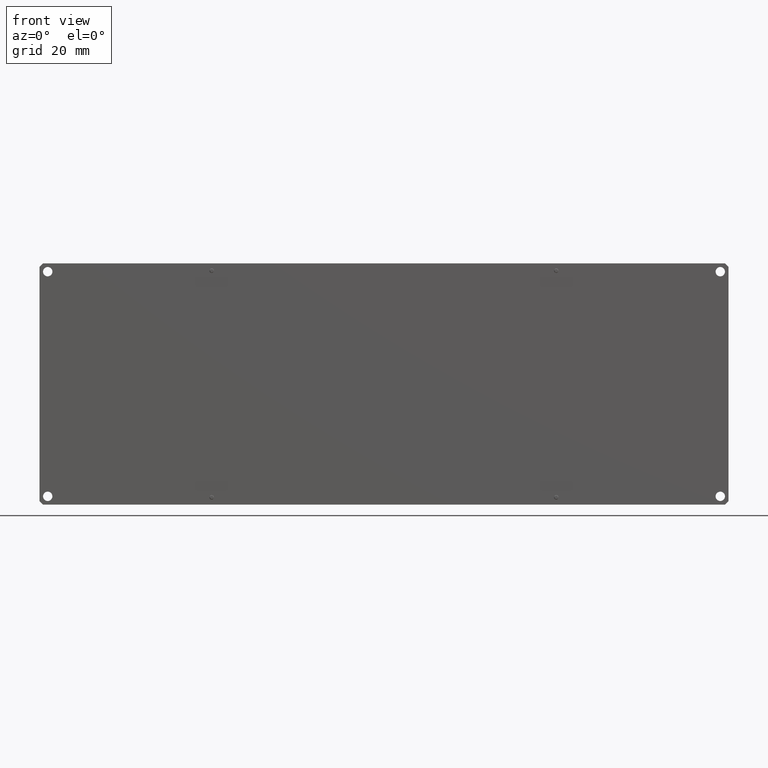
[diagram: clean part render]
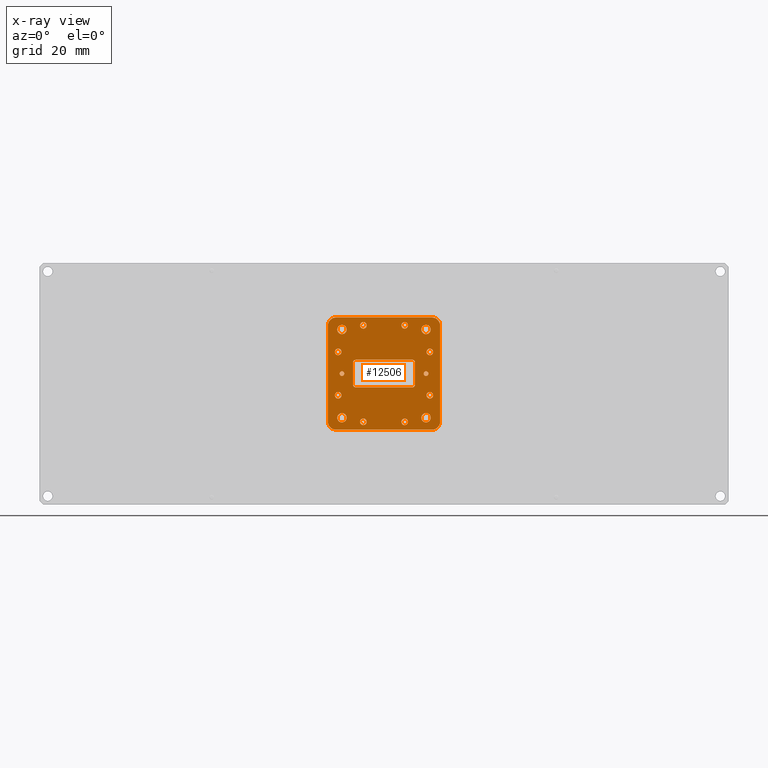
[diagram: x-ray — body ghosted, one internal face saturated and labeled with its STEP entity id]
A machine part, front view, then the same camera in x-ray: the body is ghosted and one INTERNAL B-rep face — a face not visible from any outside direction — is saturated and labeled: STEP entity #12506.
In plain terms, the highlighted planar face has unit normal (0, 1, -0).
Its self-contained STEP definition (entity closure, byte-faithful):
#25 = LINE ( 'NONE', #6409, #1653 ) ;
#55 = CARTESIAN_POINT ( 'NONE',  ( -38.27910945080824945, 18.86423224274894750, 4.946734810824807482 ) ) ;
#59 = CARTESIAN_POINT ( 'NONE',  ( -12.37110945080824642, 18.86423224274894750, 0.03183481082480628388 ) ) ;
#66 = AXIS2_PLACEMENT_3D ( 'NONE', #2451, #11174, #5684 ) ;
#89 = CARTESIAN_POINT ( 'NONE',  ( -34.21510945080824229, 18.86423224274894750, 8.159834810824811768 ) ) ;
#95 = VERTEX_POINT ( 'NONE', #8981 ) ;
#112 = VERTEX_POINT ( 'NONE', #13267 ) ;
#134 = DIRECTION ( 'NONE',  ( 0.000000000000000000, 0.000000000000000000, 1.000000000000000000 ) ) ;
#142 = AXIS2_PLACEMENT_3D ( 'NONE', #2832, #10411, #12924 ) ;
#151 = VERTEX_POINT ( 'NONE', #12993 ) ;
#161 = CARTESIAN_POINT ( 'NONE',  ( -39.67610945080826212, 18.86423224274894750, 13.31603481082479590 ) ) ;
#178 = EDGE_CURVE ( 'NONE', #6704, #1979, #9813, .T. ) ;
#199 = CARTESIAN_POINT ( 'NONE',  ( -30.40510945080824712, 18.86423224274894750, 20.65663481082480857 ) ) ;
#235 = ORIENTED_EDGE ( 'NONE', *, *, #2379, .F. ) ;
#239 = DIRECTION ( 'NONE',  ( 0.000000000000000000, 1.000000000000000000, -0.000000000000000000 ) ) ;
#255 = CARTESIAN_POINT ( 'NONE',  ( -30.40510945080824712, 18.86423224274894750, 21.87583481082480574 ) ) ;
#270 = EDGE_CURVE ( 'NONE', #2891, #112, #8692, .T. ) ;
#278 = DIRECTION ( 'NONE',  ( 0.000000000000000000, 1.000000000000000000, -0.000000000000000000 ) ) ;
#291 = CIRCLE ( 'NONE', #10392, 1.219199999999996731 ) ;
#332 = EDGE_CURVE ( 'NONE', #13416, #2404, #5093, .T. ) ;
#384 = EDGE_CURVE ( 'NONE', #7284, #11251, #3298, .T. ) ;
#409 = CARTESIAN_POINT ( 'NONE',  ( -7.291109450808252568, 18.86423224274894750, 4.095834810824809047 ) ) ;
#413 = CARTESIAN_POINT ( 'NONE',  ( -7.291109450808250791, 18.86423224274894750, -10.43296518917519400 ) ) ;
#456 = CIRCLE ( 'NONE', #8982, 1.219199999999996731 ) ;
#459 = ORIENTED_EDGE ( 'NONE', *, *, #10966, .T. ) ;
#481 = EDGE_CURVE ( 'NONE', #7651, #11425, #4212, .T. ) ;
#487 = CARTESIAN_POINT ( 'NONE',  ( -39.67610945080826212, 18.86423224274894750, -3.905165189175186402 ) ) ;
#489 = EDGE_CURVE ( 'NONE', #6889, #12613, #1733, .T. ) ;
#490 = EDGE_LOOP ( 'NONE', ( #11924, #459 ) ) ;
#496 = VERTEX_POINT ( 'NONE', #55 ) ;
#583 = VERTEX_POINT ( 'NONE', #3434 ) ;
#597 = CARTESIAN_POINT ( 'NONE',  ( -5.894109450808239892, 18.86423224274894750, -2.685965189175195000 ) ) ;
#632 = CARTESIAN_POINT ( 'NONE',  ( -15.16510945080825223, 18.86423224274894750, -13.68416518917518943 ) ) ;
#698 = CARTESIAN_POINT ( 'NONE',  ( -5.894109450808239892, 18.86423224274894750, 10.87763481082480155 ) ) ;
#739 = VERTEX_POINT ( 'NONE', #3261 ) ;
#781 = EDGE_CURVE ( 'NONE', #2404, #1125, #2264, .T. ) ;
#794 = VERTEX_POINT ( 'NONE', #1079 ) ;
#802 = CIRCLE ( 'NONE', #8656, 1.015999999999999570 ) ;
#830 = ORIENTED_EDGE ( 'NONE', *, *, #10790, .F. ) ;
#949 = EDGE_CURVE ( 'NONE', #95, #5609, #5300, .T. ) ;
#979 = DIRECTION ( 'NONE',  ( -0.000000000000000000, -1.000000000000000000, -0.000000000000000000 ) ) ;
#1008 = AXIS2_PLACEMENT_3D ( 'NONE', #11203, #3966, #3892 ) ;
#1044 = CIRCLE ( 'NONE', #3956, 1.016000000000000014 ) ;
#1066 = ORIENTED_EDGE ( 'NONE', *, *, #12535, .T. ) ;
#1079 = CARTESIAN_POINT ( 'NONE',  ( -30.40510945080824712, 18.86423224274894750, 23.09503481082480292 ) ) ;
#1091 = DIRECTION ( 'NONE',  ( 0.000000000000000000, 1.000000000000000000, -0.000000000000000000 ) ) ;
#1122 = EDGE_LOOP ( 'NONE', ( #6341, #1750 ) ) ;
#1125 = VERTEX_POINT ( 'NONE', #2112 ) ;
#1181 = DIRECTION ( 'NONE',  ( 0.000000000000000000, 1.000000000000000000, -0.000000000000000000 ) ) ;
#1227 = CIRCLE ( 'NONE', #11550, 1.219199999999996731 ) ;
#1241 = CIRCLE ( 'NONE', #2141, 1.219199999999998507 ) ;
#1247 = VERTEX_POINT ( 'NONE', #10819 ) ;
#1276 = CIRCLE ( 'NONE', #6414, 3.048000000000000487 ) ;
#1324 = ORIENTED_EDGE ( 'NONE', *, *, #12075, .F. ) ;
#1334 = DIRECTION ( 'NONE',  ( 0.000000000000000000, 0.000000000000000000, 1.000000000000000000 ) ) ;
#1347 = DIRECTION ( 'NONE',  ( 0.000000000000000000, 0.000000000000000000, 1.000000000000000000 ) ) ;
#1378 = DIRECTION ( 'NONE',  ( 0.000000000000000000, 1.000000000000000000, -0.000000000000000000 ) ) ;
#1418 = ORIENTED_EDGE ( 'NONE', *, *, #2310, .F. ) ;
#1503 = CARTESIAN_POINT ( 'NONE',  ( -7.291109450808250791, 18.86423224274894750, 22.07903481082480823 ) ) ;
#1522 = EDGE_CURVE ( 'NONE', #5063, #12476, #1915, .T. ) ;
#1524 = EDGE_CURVE ( 'NONE', #4023, #151, #4387, .T. ) ;
#1525 = EDGE_CURVE ( 'NONE', #5609, #95, #8195, .T. ) ;
#1590 = CIRCLE ( 'NONE', #12580, 1.015999999999999570 ) ;
#1609 = DIRECTION ( 'NONE',  ( 0.000000000000000000, 0.000000000000000000, 1.000000000000000000 ) ) ;
#1653 = VECTOR ( 'NONE', #6138, 1000.000000000000000 ) ;
#1723 = AXIS2_PLACEMENT_3D ( 'NONE', #6862, #7847, #5810 ) ;
#1733 = CIRCLE ( 'NONE', #3990, 1.219199999999996731 ) ;
#1750 = ORIENTED_EDGE ( 'NONE', *, *, #5625, .T. ) ;
#1779 = CARTESIAN_POINT ( 'NONE',  ( -22.78510945080825323, 18.86423224274894750, -16.60516518917519591 ) ) ;
#1795 = CARTESIAN_POINT ( 'NONE',  ( -39.67610945080826212, 18.86423224274894750, 12.09683481082479872 ) ) ;
#1832 = DIRECTION ( 'NONE',  ( 0.000000000000000000, 0.000000000000000000, 1.000000000000000000 ) ) ;
#1862 = EDGE_CURVE ( 'NONE', #7774, #5031, #6117, .T. ) ;
#1870 = CARTESIAN_POINT ( 'NONE',  ( -38.27910945080824945, 18.86423224274894750, 22.07903481082480823 ) ) ;
#1876 = VERTEX_POINT ( 'NONE', #1870 ) ;
#1915 = CIRCLE ( 'NONE', #12449, 1.219199999999998507 ) ;
#1936 = AXIS2_PLACEMENT_3D ( 'NONE', #6677, #10971, #1347 ) ;
#1957 = DIRECTION ( 'NONE',  ( 0.000000000000000000, 0.000000000000000000, -1.000000000000000000 ) ) ;
#1979 = VERTEX_POINT ( 'NONE', #7410 ) ;
#2020 = CARTESIAN_POINT ( 'NONE',  ( -38.27910945080824945, 18.86423224274894750, -10.43296518917519400 ) ) ;
#2090 = DIRECTION ( 'NONE',  ( 0.000000000000000000, 0.000000000000000000, 1.000000000000000000 ) ) ;
#2103 = CIRCLE ( 'NONE', #3900, 1.219199999999996731 ) ;
#2112 = CARTESIAN_POINT ( 'NONE',  ( -40.43810945080826258, 18.86423224274894750, 24.79683481082480156 ) ) ;
#2141 = AXIS2_PLACEMENT_3D ( 'NONE', #6418, #1091, #4320 ) ;
#2144 = FACE_BOUND ( 'NONE', #10643, .T. ) ;
#2169 = DIRECTION ( 'NONE',  ( 0.000000000000000000, 1.000000000000000000, -0.000000000000000000 ) ) ;
#2199 = DIRECTION ( 'NONE',  ( -1.000000000000000000, 0.000000000000000000, 0.000000000000000000 ) ) ;
#2210 = FACE_BOUND ( 'NONE', #1122, .T. ) ;
#2264 = LINE ( 'NONE', #9792, #13158 ) ;
#2279 = FACE_BOUND ( 'NONE', #10183, .T. ) ;
#2283 = VECTOR ( 'NONE', #9784, 1000.000000000000000 ) ;
#2304 = ORIENTED_EDGE ( 'NONE', *, *, #1524, .T. ) ;
#2310 = EDGE_CURVE ( 'NONE', #9761, #583, #7180, .T. ) ;
#2379 = EDGE_CURVE ( 'NONE', #10781, #151, #25, .T. ) ;
#2398 = EDGE_LOOP ( 'NONE', ( #3223, #6780 ) ) ;
#2404 = VERTEX_POINT ( 'NONE', #4039 ) ;
#2419 = FACE_BOUND ( 'NONE', #490, .T. ) ;
#2451 = CARTESIAN_POINT ( 'NONE',  ( -38.27910945080824945, 18.86423224274894750, 4.095834810824808159 ) ) ;
#2573 = ORIENTED_EDGE ( 'NONE', *, *, #481, .T. ) ;
#2638 = DIRECTION ( 'NONE',  ( -1.000000000000000000, 0.000000000000000000, 1.675980364211204327E-16 ) ) ;
#2663 = VERTEX_POINT ( 'NONE', #698 ) ;
#2707 = CARTESIAN_POINT ( 'NONE',  ( -7.291109450808250791, 18.86423224274894750, -12.16016518917519207 ) ) ;
#2813 = CIRCLE ( 'NONE', #9310, 1.219199999999996731 ) ;
#2824 = VERTEX_POINT ( 'NONE', #10600 ) ;
#2832 = CARTESIAN_POINT ( 'NONE',  ( -5.132109450808237661, 18.86423224274894750, -13.55716518917519764 ) ) ;
#2891 = VERTEX_POINT ( 'NONE', #9825 ) ;
#2937 = CARTESIAN_POINT ( 'NONE',  ( -5.132109450808237661, 18.86423224274894750, 21.74883481082479619 ) ) ;
#2944 = CARTESIAN_POINT ( 'NONE',  ( -33.19910945080824405, 18.86423224274894750, -0.9841651891751898029 ) ) ;
#2952 = VECTOR ( 'NONE', #9874, 1000.000000000000000 ) ;
#3014 = CARTESIAN_POINT ( 'NONE',  ( -11.35510945080824641, 18.86423224274894750, 9.175834810824808230 ) ) ;
#3146 = CARTESIAN_POINT ( 'NONE',  ( -15.16510945080825223, 18.86423224274894750, 21.87583481082480574 ) ) ;
#3223 = ORIENTED_EDGE ( 'NONE', *, *, #1862, .T. ) ;
#3261 = CARTESIAN_POINT ( 'NONE',  ( -38.27910945080824945, 18.86423224274894750, 3.244934810824807947 ) ) ;
#3278 = FACE_BOUND ( 'NONE', #8121, .T. ) ;
#3298 = LINE ( 'NONE', #3014, #9367 ) ;
#3303 = DIRECTION ( 'NONE',  ( 0.000000000000000000, 1.000000000000000000, -0.000000000000000000 ) ) ;
#3309 = CIRCLE ( 'NONE', #12721, 0.8508999999999982133 ) ;
#3347 = CARTESIAN_POINT ( 'NONE',  ( -38.27910945080824945, 18.86423224274894750, 20.35183481082480839 ) ) ;
#3355 = ORIENTED_EDGE ( 'NONE', *, *, #8143, .T. ) ;
#3373 = ORIENTED_EDGE ( 'NONE', *, *, #4605, .T. ) ;
#3411 = AXIS2_PLACEMENT_3D ( 'NONE', #3347, #11265, #5723 ) ;
#3412 = CARTESIAN_POINT ( 'NONE',  ( -22.78510945080824968, 18.86423224274894750, 4.095834810824808159 ) ) ;
#3434 = CARTESIAN_POINT ( 'NONE',  ( -40.43810945080826258, 18.86423224274894750, -16.60516518917518880 ) ) ;
#3436 = CARTESIAN_POINT ( 'NONE',  ( -5.132109450808237661, 18.86423224274894750, -16.60516518917519591 ) ) ;
#3527 = CARTESIAN_POINT ( 'NONE',  ( -11.35510945080824641, 18.86423224274894750, 8.159834810824808216 ) ) ;
#3576 = AXIS2_PLACEMENT_3D ( 'NONE', #10813, #12716, #4356 ) ;
#3654 = DIRECTION ( 'NONE',  ( 0.000000000000000000, 0.000000000000000000, -1.000000000000000000 ) ) ;
#3674 = CARTESIAN_POINT ( 'NONE',  ( -5.894109450808239892, 18.86423224274894750, 13.31603481082479590 ) ) ;
#3704 = AXIS2_PLACEMENT_3D ( 'NONE', #11916, #6564, #13179 ) ;
#3739 = ORIENTED_EDGE ( 'NONE', *, *, #270, .T. ) ;
#3892 = DIRECTION ( 'NONE',  ( 0.000000000000000000, 0.000000000000000000, -1.000000000000000000 ) ) ;
#3900 = AXIS2_PLACEMENT_3D ( 'NONE', #4209, #6501, #10797 ) ;
#3956 = AXIS2_PLACEMENT_3D ( 'NONE', #9570, #11528, #1832 ) ;
#3966 = DIRECTION ( 'NONE',  ( -0.000000000000000000, -1.000000000000000000, -0.000000000000000000 ) ) ;
#3971 = EDGE_CURVE ( 'NONE', #794, #10894, #9638, .T. ) ;
#3975 = AXIS2_PLACEMENT_3D ( 'NONE', #8008, #10250, #9262 ) ;
#3980 = DIRECTION ( 'NONE',  ( 0.000000000000000000, 0.000000000000000000, 1.000000000000000000 ) ) ;
#3990 = AXIS2_PLACEMENT_3D ( 'NONE', #10731, #6366, #11586 ) ;
#4023 = VERTEX_POINT ( 'NONE', #13056 ) ;
#4039 = CARTESIAN_POINT ( 'NONE',  ( -5.132109450808237661, 18.86423224274894750, 24.79683481082480156 ) ) ;
#4066 = DIRECTION ( 'NONE',  ( -1.000000000000000000, 0.000000000000000000, 1.138269997360109674E-16 ) ) ;
#4102 = EDGE_CURVE ( 'NONE', #8986, #7979, #12209, .T. ) ;
#4134 = CARTESIAN_POINT ( 'NONE',  ( -7.291109450808252568, 18.86423224274894750, 3.244934810824810612 ) ) ;
#4141 = CARTESIAN_POINT ( 'NONE',  ( -38.27910945080824945, 18.86423224274894750, -12.16016518917519207 ) ) ;
#4166 = ORIENTED_EDGE ( 'NONE', *, *, #7715, .F. ) ;
#4209 = CARTESIAN_POINT ( 'NONE',  ( -5.894109450808239892, 18.86423224274894750, 12.09683481082479872 ) ) ;
#4212 = CIRCLE ( 'NONE', #13854, 1.219199999999996731 ) ;
#4320 = DIRECTION ( 'NONE',  ( 0.000000000000000000, 0.000000000000000000, 1.000000000000000000 ) ) ;
#4356 = DIRECTION ( 'NONE',  ( 0.000000000000000000, 0.000000000000000000, 1.000000000000000000 ) ) ;
#4387 = CIRCLE ( 'NONE', #5512, 1.016000000000000014 ) ;
#4396 = VERTEX_POINT ( 'NONE', #4134 ) ;
#4542 = ORIENTED_EDGE ( 'NONE', *, *, #1525, .T. ) ;
#4559 = ORIENTED_EDGE ( 'NONE', *, *, #3971, .T. ) ;
#4571 = VECTOR ( 'NONE', #1957, 1000.000000000000000 ) ;
#4575 = LINE ( 'NONE', #8660, #2283 ) ;
#4605 = EDGE_CURVE ( 'NONE', #9621, #11009, #11891, .T. ) ;
#4703 = EDGE_LOOP ( 'NONE', ( #1066, #9066 ) ) ;
#4711 = CARTESIAN_POINT ( 'NONE',  ( -43.48610945080825729, 18.86423224274894750, 4.095834810824808159 ) ) ;
#4720 = CIRCLE ( 'NONE', #9218, 1.219199999999996731 ) ;
#4767 = DIRECTION ( 'NONE',  ( 0.000000000000000000, 0.000000000000000000, 1.000000000000000000 ) ) ;
#4789 = EDGE_CURVE ( 'NONE', #12613, #6889, #456, .T. ) ;
#4806 = ORIENTED_EDGE ( 'NONE', *, *, #6324, .F. ) ;
#4883 = DIRECTION ( 'NONE',  ( 0.000000000000000000, 1.000000000000000000, -0.000000000000000000 ) ) ;
#5031 = VERTEX_POINT ( 'NONE', #13583 ) ;
#5063 = VERTEX_POINT ( 'NONE', #11339 ) ;
#5081 = CARTESIAN_POINT ( 'NONE',  ( -38.27910945080824945, 18.86423224274894750, 18.62463481082481209 ) ) ;
#5093 = CIRCLE ( 'NONE', #13400, 3.047999999999998710 ) ;
#5137 = DIRECTION ( 'NONE',  ( -0.000000000000000000, -1.000000000000000000, 0.000000000000000000 ) ) ;
#5300 = CIRCLE ( 'NONE', #1936, 1.727199999999998070 ) ;
#5348 = DIRECTION ( 'NONE',  ( 0.000000000000000000, 0.000000000000000000, 1.000000000000000000 ) ) ;
#5349 = ORIENTED_EDGE ( 'NONE', *, *, #7140, .T. ) ;
#5358 = CARTESIAN_POINT ( 'NONE',  ( -39.67610945080826212, 18.86423224274894750, -2.685965189175189671 ) ) ;
#5384 = EDGE_CURVE ( 'NONE', #6637, #10565, #10060, .T. ) ;
#5417 = VERTEX_POINT ( 'NONE', #3674 ) ;
#5512 = AXIS2_PLACEMENT_3D ( 'NONE', #59, #2169, #12707 ) ;
#5517 = FACE_BOUND ( 'NONE', #7320, .T. ) ;
#5560 = CARTESIAN_POINT ( 'NONE',  ( -38.27910945080824945, 18.86423224274894750, 20.35183481082480839 ) ) ;
#5609 = VERTEX_POINT ( 'NONE', #2020 ) ;
#5625 = EDGE_CURVE ( 'NONE', #2663, #5417, #2103, .T. ) ;
#5684 = DIRECTION ( 'NONE',  ( 0.000000000000000000, 0.000000000000000000, -1.000000000000000000 ) ) ;
#5723 = DIRECTION ( 'NONE',  ( 0.000000000000000000, 0.000000000000000000, 1.000000000000000000 ) ) ;
#5735 = ORIENTED_EDGE ( 'NONE', *, *, #13462, .T. ) ;
#5740 = EDGE_CURVE ( 'NONE', #4396, #11698, #13330, .T. ) ;
#5810 = DIRECTION ( 'NONE',  ( 0.000000000000000000, 0.000000000000000000, 1.000000000000000000 ) ) ;
#5891 = DIRECTION ( 'NONE',  ( -0.000000000000000000, -1.000000000000000000, 0.000000000000000000 ) ) ;
#5980 = CIRCLE ( 'NONE', #13603, 1.727199999999998070 ) ;
#6036 = CARTESIAN_POINT ( 'NONE',  ( -34.21510945080824229, 18.86423224274894750, 0.03183481082481062069 ) ) ;
#6094 = CIRCLE ( 'NONE', #3411, 1.727199999999998070 ) ;
#6115 = CIRCLE ( 'NONE', #66, 0.8508999999999998787 ) ;
#6117 = CIRCLE ( 'NONE', #9036, 1.219199999999996731 ) ;
#6138 = DIRECTION ( 'NONE',  ( 1.000000000000000000, 0.000000000000000000, -1.517693329813479566E-16 ) ) ;
#6300 = DIRECTION ( 'NONE',  ( 0.000000000000000000, 0.000000000000000000, 1.000000000000000000 ) ) ;
#6311 = ORIENTED_EDGE ( 'NONE', *, *, #949, .T. ) ;
#6318 = DIRECTION ( 'NONE',  ( 0.000000000000000000, 1.000000000000000000, -0.000000000000000000 ) ) ;
#6324 = EDGE_CURVE ( 'NONE', #739, #496, #10878, .T. ) ;
#6341 = ORIENTED_EDGE ( 'NONE', *, *, #6860, .T. ) ;
#6366 = DIRECTION ( 'NONE',  ( 0.000000000000000000, 1.000000000000000000, -0.000000000000000000 ) ) ;
#6372 = DIRECTION ( 'NONE',  ( 0.000000000000000000, 0.000000000000000000, 1.000000000000000000 ) ) ;
#6409 = CARTESIAN_POINT ( 'NONE',  ( -11.35510945080824641, 18.86423224274894750, -0.9841651891751932446 ) ) ;
#6414 = AXIS2_PLACEMENT_3D ( 'NONE', #7380, #5137, #9427 ) ;
#6418 = CARTESIAN_POINT ( 'NONE',  ( -30.40510945080824712, 18.86423224274894750, -13.68416518917518943 ) ) ;
#6479 = FACE_BOUND ( 'NONE', #13628, .T. ) ;
#6501 = DIRECTION ( 'NONE',  ( 0.000000000000000000, 1.000000000000000000, -0.000000000000000000 ) ) ;
#6518 = ORIENTED_EDGE ( 'NONE', *, *, #489, .T. ) ;
#6564 = DIRECTION ( 'NONE',  ( 0.000000000000000000, 1.000000000000000000, -0.000000000000000000 ) ) ;
#6621 = FACE_BOUND ( 'NONE', #13738, .T. ) ;
#6637 = VERTEX_POINT ( 'NONE', #12094 ) ;
#6677 = CARTESIAN_POINT ( 'NONE',  ( -38.27910945080824945, 18.86423224274894750, -12.16016518917519207 ) ) ;
#6704 = VERTEX_POINT ( 'NONE', #1503 ) ;
#6780 = ORIENTED_EDGE ( 'NONE', *, *, #8127, .T. ) ;
#6857 = DIRECTION ( 'NONE',  ( -0.000000000000000000, -1.000000000000000000, -0.000000000000000000 ) ) ;
#6860 = EDGE_CURVE ( 'NONE', #5417, #2663, #6963, .T. ) ;
#6862 = CARTESIAN_POINT ( 'NONE',  ( -7.291109450808250791, 18.86423224274894750, -12.16016518917519207 ) ) ;
#6889 = VERTEX_POINT ( 'NONE', #7381 ) ;
#6913 = EDGE_CURVE ( 'NONE', #11425, #7651, #4720, .T. ) ;
#6925 = VERTEX_POINT ( 'NONE', #3527 ) ;
#6963 = CIRCLE ( 'NONE', #8769, 1.219199999999996731 ) ;
#7021 = VECTOR ( 'NONE', #2638, 1000.000000000000000 ) ;
#7061 = EDGE_LOOP ( 'NONE', ( #11409, #830 ) ) ;
#7140 = EDGE_CURVE ( 'NONE', #8986, #11251, #1590, .T. ) ;
#7148 = EDGE_LOOP ( 'NONE', ( #11144, #3739 ) ) ;
#7149 = ORIENTED_EDGE ( 'NONE', *, *, #11031, .T. ) ;
#7161 = ORIENTED_EDGE ( 'NONE', *, *, #10444, .T. ) ;
#7163 = AXIS2_PLACEMENT_3D ( 'NONE', #2707, #10155, #13516 ) ;
#7180 = LINE ( 'NONE', #1779, #7021 ) ;
#7284 = VERTEX_POINT ( 'NONE', #9557 ) ;
#7306 = ORIENTED_EDGE ( 'NONE', *, *, #9575, .T. ) ;
#7320 = EDGE_LOOP ( 'NONE', ( #2573, #13866 ) ) ;
#7380 = CARTESIAN_POINT ( 'NONE',  ( -40.43810945080826258, 18.86423224274894750, -13.55716518917519053 ) ) ;
#7381 = CARTESIAN_POINT ( 'NONE',  ( -5.894109450808239892, 18.86423224274894750, -5.124365189175188462 ) ) ;
#7404 = DIRECTION ( 'NONE',  ( 0.000000000000000000, 0.000000000000000000, 1.000000000000000000 ) ) ;
#7410 = CARTESIAN_POINT ( 'NONE',  ( -7.291109450808250791, 18.86423224274894750, 18.62463481082481209 ) ) ;
#7514 = AXIS2_PLACEMENT_3D ( 'NONE', #8010, #5891, #12285 ) ;
#7550 = FACE_OUTER_BOUND ( 'NONE', #8256, .T. ) ;
#7615 = FACE_BOUND ( 'NONE', #4703, .T. ) ;
#7648 = CARTESIAN_POINT ( 'NONE',  ( -7.291109450808252568, 18.86423224274894750, 4.946734810824806594 ) ) ;
#7651 = VERTEX_POINT ( 'NONE', #11463 ) ;
#7715 = EDGE_CURVE ( 'NONE', #4023, #6925, #4575, .T. ) ;
#7768 = CIRCLE ( 'NONE', #8450, 1.219199999999998507 ) ;
#7774 = VERTEX_POINT ( 'NONE', #161 ) ;
#7786 = CIRCLE ( 'NONE', #11816, 1.727199999999998070 ) ;
#7823 = DIRECTION ( 'NONE',  ( 0.000000000000000000, 0.000000000000000000, 1.000000000000000000 ) ) ;
#7847 = DIRECTION ( 'NONE',  ( 0.000000000000000000, 1.000000000000000000, -0.000000000000000000 ) ) ;
#7886 = ORIENTED_EDGE ( 'NONE', *, *, #13423, .F. ) ;
#7979 = VERTEX_POINT ( 'NONE', #6036 ) ;
#8008 = CARTESIAN_POINT ( 'NONE',  ( -30.40510945080824712, 18.86423224274894750, -13.68416518917518943 ) ) ;
#8010 = CARTESIAN_POINT ( 'NONE',  ( -40.43810945080826258, 18.86423224274894750, 21.74883481082479619 ) ) ;
#8121 = EDGE_LOOP ( 'NONE', ( #9882, #8889 ) ) ;
#8127 = EDGE_CURVE ( 'NONE', #5031, #7774, #13118, .T. ) ;
#8139 = DIRECTION ( 'NONE',  ( 0.000000000000000000, 1.000000000000000000, -0.000000000000000000 ) ) ;
#8143 = EDGE_CURVE ( 'NONE', #10894, #794, #1227, .T. ) ;
#8195 = CIRCLE ( 'NONE', #9779, 1.727199999999998070 ) ;
#8253 = ORIENTED_EDGE ( 'NONE', *, *, #11578, .T. ) ;
#8256 = EDGE_LOOP ( 'NONE', ( #1418, #8253, #1324, #13265, #8508, #7306, #13316, #13188 ) ) ;
#8288 = EDGE_CURVE ( 'NONE', #10081, #2824, #2813, .T. ) ;
#8290 = ORIENTED_EDGE ( 'NONE', *, *, #8288, .T. ) ;
#8380 = EDGE_CURVE ( 'NONE', #112, #2891, #1241, .T. ) ;
#8450 = AXIS2_PLACEMENT_3D ( 'NONE', #12351, #8923, #11178 ) ;
#8474 = CARTESIAN_POINT ( 'NONE',  ( -5.894109450808239892, 18.86423224274894750, -3.905165189175191287 ) ) ;
#8508 = ORIENTED_EDGE ( 'NONE', *, *, #781, .T. ) ;
#8642 = EDGE_CURVE ( 'NONE', #7284, #6925, #802, .T. ) ;
#8656 = AXIS2_PLACEMENT_3D ( 'NONE', #9021, #12250, #12380 ) ;
#8660 = CARTESIAN_POINT ( 'NONE',  ( -11.35510945080824641, 18.86423224274894750, 9.175834810824808230 ) ) ;
#8692 = CIRCLE ( 'NONE', #3975, 1.219199999999998507 ) ;
#8694 = DIRECTION ( 'NONE',  ( 0.000000000000000000, 0.000000000000000000, 1.000000000000000000 ) ) ;
#8717 = DIRECTION ( 'NONE',  ( 0.000000000000000000, 1.000000000000000000, -0.000000000000000000 ) ) ;
#8769 = AXIS2_PLACEMENT_3D ( 'NONE', #10685, #6318, #5348 ) ;
#8849 = DIRECTION ( 'NONE',  ( 0.000000000000000000, 0.000000000000000000, 1.000000000000000000 ) ) ;
#8851 = DIRECTION ( 'NONE',  ( 0.000000000000000000, 1.000000000000000000, -0.000000000000000000 ) ) ;
#8889 = ORIENTED_EDGE ( 'NONE', *, *, #1522, .T. ) ;
#8918 = DIRECTION ( 'NONE',  ( 0.000000000000000000, 0.000000000000000000, 1.000000000000000000 ) ) ;
#8923 = DIRECTION ( 'NONE',  ( 0.000000000000000000, 1.000000000000000000, -0.000000000000000000 ) ) ;
#8942 = ORIENTED_EDGE ( 'NONE', *, *, #8642, .T. ) ;
#8981 = CARTESIAN_POINT ( 'NONE',  ( -38.27910945080824945, 18.86423224274894750, -13.88736518917519014 ) ) ;
#8982 = AXIS2_PLACEMENT_3D ( 'NONE', #8474, #9662, #7404 ) ;
#8986 = VERTEX_POINT ( 'NONE', #89 ) ;
#9021 = CARTESIAN_POINT ( 'NONE',  ( -12.37110945080824642, 18.86423224274894750, 8.159834810824808216 ) ) ;
#9036 = AXIS2_PLACEMENT_3D ( 'NONE', #1795, #13396, #12333 ) ;
#9066 = ORIENTED_EDGE ( 'NONE', *, *, #10534, .T. ) ;
#9091 = CARTESIAN_POINT ( 'NONE',  ( -15.16510945080825223, 18.86423224274894750, 20.65663481082480857 ) ) ;
#9218 = AXIS2_PLACEMENT_3D ( 'NONE', #11734, #9636, #1334 ) ;
#9262 = DIRECTION ( 'NONE',  ( 0.000000000000000000, 0.000000000000000000, 1.000000000000000000 ) ) ;
#9310 = AXIS2_PLACEMENT_3D ( 'NONE', #11351, #4883, #3980 ) ;
#9367 = VECTOR ( 'NONE', #4066, 1000.000000000000000 ) ;
#9427 = DIRECTION ( 'NONE',  ( 0.000000000000000000, 0.000000000000000000, 1.000000000000000000 ) ) ;
#9557 = CARTESIAN_POINT ( 'NONE',  ( -12.37110945080824642, 18.86423224274894750, 9.175834810824808230 ) ) ;
#9570 = CARTESIAN_POINT ( 'NONE',  ( -33.19910945080824405, 18.86423224274894750, 0.03183481082481062069 ) ) ;
#9575 = EDGE_CURVE ( 'NONE', #1125, #6637, #13119, .T. ) ;
#9621 = VERTEX_POINT ( 'NONE', #11647 ) ;
#9636 = DIRECTION ( 'NONE',  ( 0.000000000000000000, 1.000000000000000000, -0.000000000000000000 ) ) ;
#9638 = CIRCLE ( 'NONE', #3576, 1.219199999999996731 ) ;
#9660 = FACE_BOUND ( 'NONE', #7148, .T. ) ;
#9662 = DIRECTION ( 'NONE',  ( 0.000000000000000000, 1.000000000000000000, -0.000000000000000000 ) ) ;
#9761 = VERTEX_POINT ( 'NONE', #3436 ) ;
#9779 = AXIS2_PLACEMENT_3D ( 'NONE', #4141, #3303, #6300 ) ;
#9784 = DIRECTION ( 'NONE',  ( -0.000000000000000000, 0.000000000000000000, 1.000000000000000000 ) ) ;
#9792 = CARTESIAN_POINT ( 'NONE',  ( -22.78510945080824968, 18.86423224274894750, 24.79683481082480156 ) ) ;
#9813 = CIRCLE ( 'NONE', #10929, 1.727199999999998070 ) ;
#9825 = CARTESIAN_POINT ( 'NONE',  ( -30.40510945080824712, 18.86423224274894750, -14.90336518917518838 ) ) ;
#9863 = FACE_BOUND ( 'NONE', #12195, .T. ) ;
#9874 = DIRECTION ( 'NONE',  ( 0.000000000000000000, 0.000000000000000000, -1.000000000000000000 ) ) ;
#9882 = ORIENTED_EDGE ( 'NONE', *, *, #10677, .T. ) ;
#9928 = FACE_BOUND ( 'NONE', #13468, .T. ) ;
#9949 = DIRECTION ( 'NONE',  ( 0.000000000000000000, 0.000000000000000000, -1.000000000000000000 ) ) ;
#10046 = CARTESIAN_POINT ( 'NONE',  ( -2.084109450808238506, 18.86423224274894750, 21.74883481082479619 ) ) ;
#10060 = LINE ( 'NONE', #4711, #4571 ) ;
#10081 = VERTEX_POINT ( 'NONE', #5358 ) ;
#10155 = DIRECTION ( 'NONE',  ( 0.000000000000000000, 1.000000000000000000, -0.000000000000000000 ) ) ;
#10183 = EDGE_LOOP ( 'NONE', ( #7149, #3373 ) ) ;
#10250 = DIRECTION ( 'NONE',  ( 0.000000000000000000, 1.000000000000000000, -0.000000000000000000 ) ) ;
#10319 = VECTOR ( 'NONE', #3654, 1000.000000000000000 ) ;
#10392 = AXIS2_PLACEMENT_3D ( 'NONE', #487, #8851, #8918 ) ;
#10411 = DIRECTION ( 'NONE',  ( -0.000000000000000000, -1.000000000000000000, 0.000000000000000000 ) ) ;
#10444 = EDGE_CURVE ( 'NONE', #10781, #7979, #1044, .T. ) ;
#10451 = EDGE_CURVE ( 'NONE', #10565, #583, #1276, .T. ) ;
#10534 = EDGE_CURVE ( 'NONE', #12795, #1876, #5980, .T. ) ;
#10565 = VERTEX_POINT ( 'NONE', #12862 ) ;
#10600 = CARTESIAN_POINT ( 'NONE',  ( -39.67610945080826212, 18.86423224274894750, -5.124365189175183133 ) ) ;
#10643 = EDGE_LOOP ( 'NONE', ( #8290, #5735 ) ) ;
#10675 = ORIENTED_EDGE ( 'NONE', *, *, #4789, .T. ) ;
#10677 = EDGE_CURVE ( 'NONE', #12476, #5063, #7768, .T. ) ;
#10685 = CARTESIAN_POINT ( 'NONE',  ( -5.894109450808239892, 18.86423224274894750, 12.09683481082479872 ) ) ;
#10712 = CARTESIAN_POINT ( 'NONE',  ( -15.16510945080825223, 18.86423224274894750, -12.46496518917519047 ) ) ;
#10731 = CARTESIAN_POINT ( 'NONE',  ( -5.894109450808239892, 18.86423224274894750, -3.905165189175191287 ) ) ;
#10774 = PLANE ( 'NONE',  #11264 ) ;
#10781 = VERTEX_POINT ( 'NONE', #2944 ) ;
#10790 = EDGE_CURVE ( 'NONE', #11698, #4396, #3309, .T. ) ;
#10792 = LINE ( 'NONE', #11076, #2952 ) ;
#10797 = DIRECTION ( 'NONE',  ( 0.000000000000000000, 0.000000000000000000, 1.000000000000000000 ) ) ;
#10802 = CARTESIAN_POINT ( 'NONE',  ( -7.291109450808250791, 18.86423224274894750, 20.35183481082480839 ) ) ;
#10813 = CARTESIAN_POINT ( 'NONE',  ( -30.40510945080824712, 18.86423224274894750, 21.87583481082480574 ) ) ;
#10819 = CARTESIAN_POINT ( 'NONE',  ( -2.084109450808238506, 18.86423224274894750, -13.55716518917519764 ) ) ;
#10878 = CIRCLE ( 'NONE', #1008, 0.8508999999999998787 ) ;
#10882 = CARTESIAN_POINT ( 'NONE',  ( -34.21510945080824229, 18.86423224274894750, 9.175834810824810006 ) ) ;
#10894 = VERTEX_POINT ( 'NONE', #199 ) ;
#10918 = FACE_BOUND ( 'NONE', #7061, .T. ) ;
#10929 = AXIS2_PLACEMENT_3D ( 'NONE', #11939, #278, #8849 ) ;
#10935 = ORIENTED_EDGE ( 'NONE', *, *, #384, .F. ) ;
#10966 = EDGE_CURVE ( 'NONE', #1979, #6704, #7786, .T. ) ;
#10971 = DIRECTION ( 'NONE',  ( 0.000000000000000000, 1.000000000000000000, -0.000000000000000000 ) ) ;
#11009 = VERTEX_POINT ( 'NONE', #413 ) ;
#11031 = EDGE_CURVE ( 'NONE', #11009, #9621, #13846, .T. ) ;
#11076 = CARTESIAN_POINT ( 'NONE',  ( -2.084109450808238506, 18.86423224274894750, 4.095834810824808159 ) ) ;
#11144 = ORIENTED_EDGE ( 'NONE', *, *, #8380, .T. ) ;
#11174 = DIRECTION ( 'NONE',  ( -0.000000000000000000, -1.000000000000000000, -0.000000000000000000 ) ) ;
#11178 = DIRECTION ( 'NONE',  ( 0.000000000000000000, 0.000000000000000000, 1.000000000000000000 ) ) ;
#11203 = CARTESIAN_POINT ( 'NONE',  ( -38.27910945080824945, 18.86423224274894750, 4.095834810824808159 ) ) ;
#11251 = VERTEX_POINT ( 'NONE', #11895 ) ;
#11264 = AXIS2_PLACEMENT_3D ( 'NONE', #3412, #239, #7823 ) ;
#11265 = DIRECTION ( 'NONE',  ( 0.000000000000000000, 1.000000000000000000, -0.000000000000000000 ) ) ;
#11339 = CARTESIAN_POINT ( 'NONE',  ( -15.16510945080825223, 18.86423224274894750, -14.90336518917518838 ) ) ;
#11351 = CARTESIAN_POINT ( 'NONE',  ( -39.67610945080826212, 18.86423224274894750, -3.905165189175186402 ) ) ;
#11409 = ORIENTED_EDGE ( 'NONE', *, *, #5740, .F. ) ;
#11425 = VERTEX_POINT ( 'NONE', #9091 ) ;
#11463 = CARTESIAN_POINT ( 'NONE',  ( -15.16510945080825223, 18.86423224274894750, 23.09503481082480292 ) ) ;
#11515 = CARTESIAN_POINT ( 'NONE',  ( -7.291109450808252568, 18.86423224274894750, 4.095834810824809047 ) ) ;
#11528 = DIRECTION ( 'NONE',  ( 0.000000000000000000, 1.000000000000000000, -0.000000000000000000 ) ) ;
#11550 = AXIS2_PLACEMENT_3D ( 'NONE', #255, #1378, #8694 ) ;
#11578 = EDGE_CURVE ( 'NONE', #9761, #1247, #12245, .T. ) ;
#11586 = DIRECTION ( 'NONE',  ( 0.000000000000000000, 0.000000000000000000, 1.000000000000000000 ) ) ;
#11647 = CARTESIAN_POINT ( 'NONE',  ( -7.291109450808250791, 18.86423224274894750, -13.88736518917519014 ) ) ;
#11650 = DIRECTION ( 'NONE',  ( 0.000000000000000000, 0.000000000000000000, -1.000000000000000000 ) ) ;
#11698 = VERTEX_POINT ( 'NONE', #7648 ) ;
#11734 = CARTESIAN_POINT ( 'NONE',  ( -15.16510945080825223, 18.86423224274894750, 21.87583481082480574 ) ) ;
#11816 = AXIS2_PLACEMENT_3D ( 'NONE', #10802, #1181, #134 ) ;
#11891 = CIRCLE ( 'NONE', #7163, 1.727199999999998070 ) ;
#11895 = CARTESIAN_POINT ( 'NONE',  ( -33.19910945080824405, 18.86423224274894750, 9.175834810824810006 ) ) ;
#11916 = CARTESIAN_POINT ( 'NONE',  ( -39.67610945080826212, 18.86423224274894750, 12.09683481082479872 ) ) ;
#11924 = ORIENTED_EDGE ( 'NONE', *, *, #178, .T. ) ;
#11939 = CARTESIAN_POINT ( 'NONE',  ( -7.291109450808250791, 18.86423224274894750, 20.35183481082480839 ) ) ;
#12075 = EDGE_CURVE ( 'NONE', #13416, #1247, #10792, .T. ) ;
#12094 = CARTESIAN_POINT ( 'NONE',  ( -43.48610945080825729, 18.86423224274894750, 21.74883481082479619 ) ) ;
#12195 = EDGE_LOOP ( 'NONE', ( #4806, #7886 ) ) ;
#12207 = AXIS2_PLACEMENT_3D ( 'NONE', #409, #6857, #9949 ) ;
#12209 = LINE ( 'NONE', #10882, #10319 ) ;
#12245 = CIRCLE ( 'NONE', #142, 3.048000000000000487 ) ;
#12250 = DIRECTION ( 'NONE',  ( 0.000000000000000000, 1.000000000000000000, -0.000000000000000000 ) ) ;
#12285 = DIRECTION ( 'NONE',  ( 0.000000000000000000, 0.000000000000000000, 1.000000000000000000 ) ) ;
#12333 = DIRECTION ( 'NONE',  ( 0.000000000000000000, 0.000000000000000000, 1.000000000000000000 ) ) ;
#12351 = CARTESIAN_POINT ( 'NONE',  ( -15.16510945080825223, 18.86423224274894750, -13.68416518917518943 ) ) ;
#12352 = CARTESIAN_POINT ( 'NONE',  ( -33.19910945080824405, 18.86423224274894750, 8.159834810824811768 ) ) ;
#12380 = DIRECTION ( 'NONE',  ( 0.000000000000000000, 0.000000000000000000, 1.000000000000000000 ) ) ;
#12449 = AXIS2_PLACEMENT_3D ( 'NONE', #632, #8139, #6372 ) ;
#12476 = VERTEX_POINT ( 'NONE', #10712 ) ;
#12506 = ADVANCED_FACE ( 'NONE', ( #9660, #9928, #3278, #5517, #2144, #13021, #2210, #13162, #9863, #7550, #6621, #7615, #2419, #2279, #6479, #10918 ), #10774, .F. ) ;
#12535 = EDGE_CURVE ( 'NONE', #1876, #12795, #6094, .T. ) ;
#12580 = AXIS2_PLACEMENT_3D ( 'NONE', #12352, #13274, #4767 ) ;
#12613 = VERTEX_POINT ( 'NONE', #597 ) ;
#12626 = EDGE_LOOP ( 'NONE', ( #10675, #6518 ) ) ;
#12707 = DIRECTION ( 'NONE',  ( 0.000000000000000000, 0.000000000000000000, 1.000000000000000000 ) ) ;
#12716 = DIRECTION ( 'NONE',  ( 0.000000000000000000, 1.000000000000000000, -0.000000000000000000 ) ) ;
#12721 = AXIS2_PLACEMENT_3D ( 'NONE', #11515, #979, #11650 ) ;
#12732 = ORIENTED_EDGE ( 'NONE', *, *, #4102, .F. ) ;
#12795 = VERTEX_POINT ( 'NONE', #5081 ) ;
#12862 = CARTESIAN_POINT ( 'NONE',  ( -43.48610945080825729, 18.86423224274894750, -13.55716518917519053 ) ) ;
#12924 = DIRECTION ( 'NONE',  ( 0.000000000000000000, 0.000000000000000000, 1.000000000000000000 ) ) ;
#12993 = CARTESIAN_POINT ( 'NONE',  ( -12.37110945080824642, 18.86423224274894750, -0.9841651891751932446 ) ) ;
#13021 = FACE_BOUND ( 'NONE', #12626, .T. ) ;
#13056 = CARTESIAN_POINT ( 'NONE',  ( -11.35510945080824641, 18.86423224274894750, 0.03183481082480628388 ) ) ;
#13118 = CIRCLE ( 'NONE', #3704, 1.219199999999996731 ) ;
#13119 = CIRCLE ( 'NONE', #7514, 3.047999999999998710 ) ;
#13135 = DIRECTION ( 'NONE',  ( 0.000000000000000000, 0.000000000000000000, 1.000000000000000000 ) ) ;
#13158 = VECTOR ( 'NONE', #2199, 1000.000000000000000 ) ;
#13162 = FACE_BOUND ( 'NONE', #2398, .T. ) ;
#13179 = DIRECTION ( 'NONE',  ( 0.000000000000000000, 0.000000000000000000, 1.000000000000000000 ) ) ;
#13188 = ORIENTED_EDGE ( 'NONE', *, *, #10451, .T. ) ;
#13265 = ORIENTED_EDGE ( 'NONE', *, *, #332, .T. ) ;
#13267 = CARTESIAN_POINT ( 'NONE',  ( -30.40510945080824712, 18.86423224274894750, -12.46496518917519047 ) ) ;
#13274 = DIRECTION ( 'NONE',  ( 0.000000000000000000, 1.000000000000000000, -0.000000000000000000 ) ) ;
#13316 = ORIENTED_EDGE ( 'NONE', *, *, #5384, .T. ) ;
#13330 = CIRCLE ( 'NONE', #12207, 0.8508999999999982133 ) ;
#13335 = DIRECTION ( 'NONE',  ( -0.000000000000000000, -1.000000000000000000, 0.000000000000000000 ) ) ;
#13396 = DIRECTION ( 'NONE',  ( 0.000000000000000000, 1.000000000000000000, -0.000000000000000000 ) ) ;
#13400 = AXIS2_PLACEMENT_3D ( 'NONE', #2937, #13335, #1609 ) ;
#13416 = VERTEX_POINT ( 'NONE', #10046 ) ;
#13423 = EDGE_CURVE ( 'NONE', #496, #739, #6115, .T. ) ;
#13462 = EDGE_CURVE ( 'NONE', #2824, #10081, #291, .T. ) ;
#13468 = EDGE_LOOP ( 'NONE', ( #4559, #3355 ) ) ;
#13516 = DIRECTION ( 'NONE',  ( 0.000000000000000000, 0.000000000000000000, 1.000000000000000000 ) ) ;
#13583 = CARTESIAN_POINT ( 'NONE',  ( -39.67610945080826212, 18.86423224274894750, 10.87763481082480155 ) ) ;
#13603 = AXIS2_PLACEMENT_3D ( 'NONE', #5560, #8717, #13135 ) ;
#13628 = EDGE_LOOP ( 'NONE', ( #4542, #6311 ) ) ;
#13738 = EDGE_LOOP ( 'NONE', ( #235, #7161, #12732, #5349, #10935, #8942, #4166, #2304 ) ) ;
#13846 = CIRCLE ( 'NONE', #1723, 1.727199999999998070 ) ;
#13854 = AXIS2_PLACEMENT_3D ( 'NONE', #3146, #13893, #2090 ) ;
#13866 = ORIENTED_EDGE ( 'NONE', *, *, #6913, .T. ) ;
#13893 = DIRECTION ( 'NONE',  ( 0.000000000000000000, 1.000000000000000000, -0.000000000000000000 ) ) ;